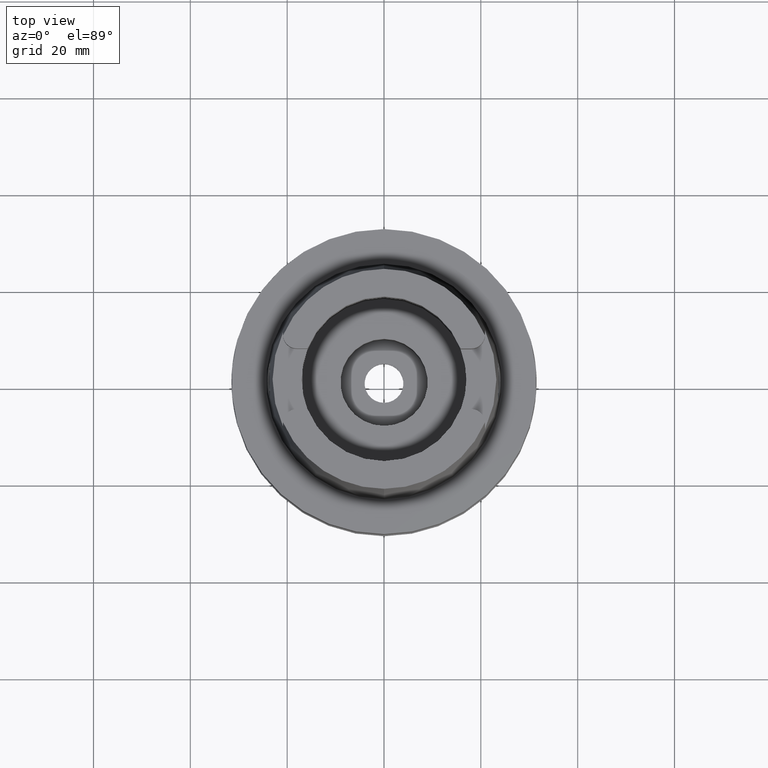
[diagram: clean part render]
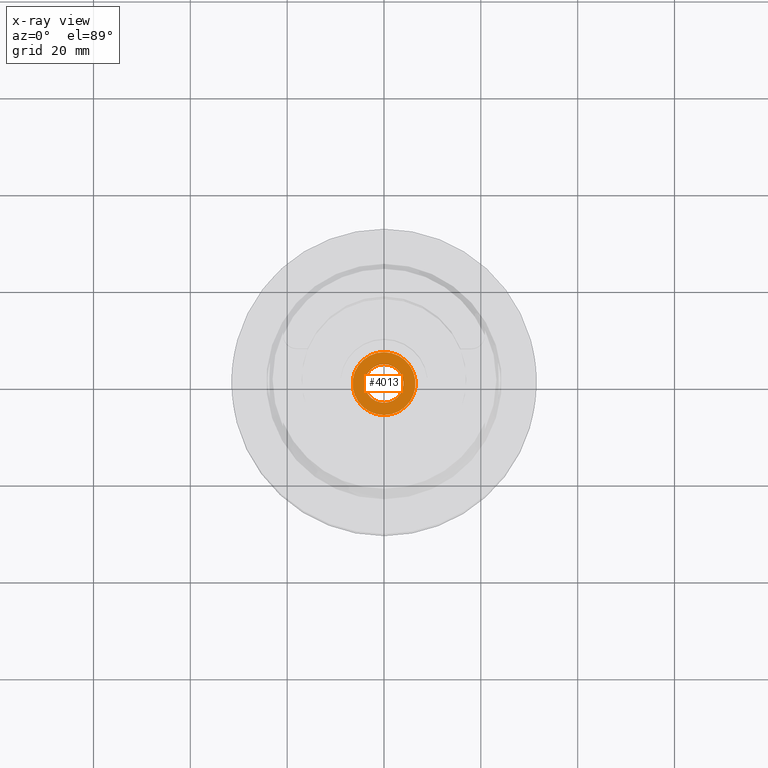
[diagram: x-ray — body ghosted, one internal face saturated and labeled with its STEP entity id]
A machine part, top view, then the same camera in x-ray: the body is ghosted and one INTERNAL B-rep face — a face not visible from any outside direction — is saturated and labeled: STEP entity #4013.
In plain terms, the highlighted planar face has unit normal (0, 0, 1).
Its self-contained STEP definition (entity closure, byte-faithful):
#882=CARTESIAN_POINT('',(0.E0,0.E0,-2.5E1));
#883=DIRECTION('',(0.E0,0.E0,1.E0));
#884=DIRECTION('',(0.E0,-1.E0,0.E0));
#885=AXIS2_PLACEMENT_3D('',#882,#883,#884);
#890=CARTESIAN_POINT('',(0.E0,0.E0,-2.5E1));
#891=DIRECTION('',(0.E0,0.E0,1.E0));
#892=DIRECTION('',(0.E0,1.E0,0.E0));
#893=AXIS2_PLACEMENT_3D('',#890,#891,#892);
#898=CARTESIAN_POINT('',(0.E0,0.E0,-2.5E1));
#899=DIRECTION('',(0.E0,0.E0,-1.E0));
#900=DIRECTION('',(0.E0,-1.E0,0.E0));
#901=AXIS2_PLACEMENT_3D('',#898,#899,#900);
#906=CARTESIAN_POINT('',(0.E0,0.E0,-2.5E1));
#907=DIRECTION('',(0.E0,0.E0,-1.E0));
#908=DIRECTION('',(0.E0,1.E0,0.E0));
#909=AXIS2_PLACEMENT_3D('',#906,#907,#908);
#3085=CARTESIAN_POINT('',(0.E0,4.E0,-2.5E1));
#3086=VERTEX_POINT('',#3085);
#3087=CARTESIAN_POINT('',(0.E0,-4.E0,-2.5E1));
#3088=VERTEX_POINT('',#3087);
#3089=CARTESIAN_POINT('',(0.E0,-6.5E0,-2.5E1));
#3090=CARTESIAN_POINT('',(0.E0,6.5E0,-2.5E1));
#3091=VERTEX_POINT('',#3089);
#3092=VERTEX_POINT('',#3090);
#3998=CARTESIAN_POINT('',(0.E0,0.E0,-2.5E1));
#3999=DIRECTION('',(0.E0,0.E0,1.E0));
#4000=DIRECTION('',(0.E0,1.E0,0.E0));
#4001=AXIS2_PLACEMENT_3D('',#3998,#3999,#4000);
#4002=PLANE('',#4001);
#4004=ORIENTED_EDGE('',*,*,#4003,.T.);
#4006=ORIENTED_EDGE('',*,*,#4005,.T.);
#4007=EDGE_LOOP('',(#4004,#4006));
#4008=FACE_OUTER_BOUND('',#4007,.F.);
#4009=ORIENTED_EDGE('',*,*,#3991,.T.);
#4010=ORIENTED_EDGE('',*,*,#3980,.T.);
#4011=EDGE_LOOP('',(#4009,#4010));
#4012=FACE_BOUND('',#4011,.F.);
#886=CIRCLE('',#885,6.5E0);
#894=CIRCLE('',#893,6.5E0);
#902=CIRCLE('',#901,4.E0);
#910=CIRCLE('',#909,4.E0);
#3980=EDGE_CURVE('',#3086,#3088,#910,.T.);
#3991=EDGE_CURVE('',#3088,#3086,#902,.T.);
#4003=EDGE_CURVE('',#3091,#3092,#886,.T.);
#4005=EDGE_CURVE('',#3092,#3091,#894,.T.);
#4013=ADVANCED_FACE('',(#4008,#4012),#4002,.F.);